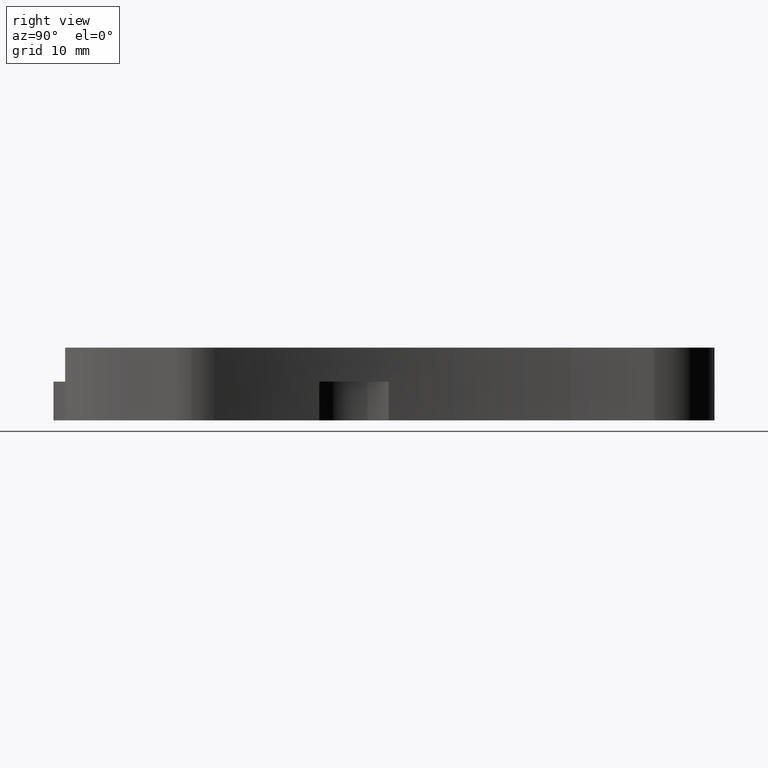
[diagram: clean part render]
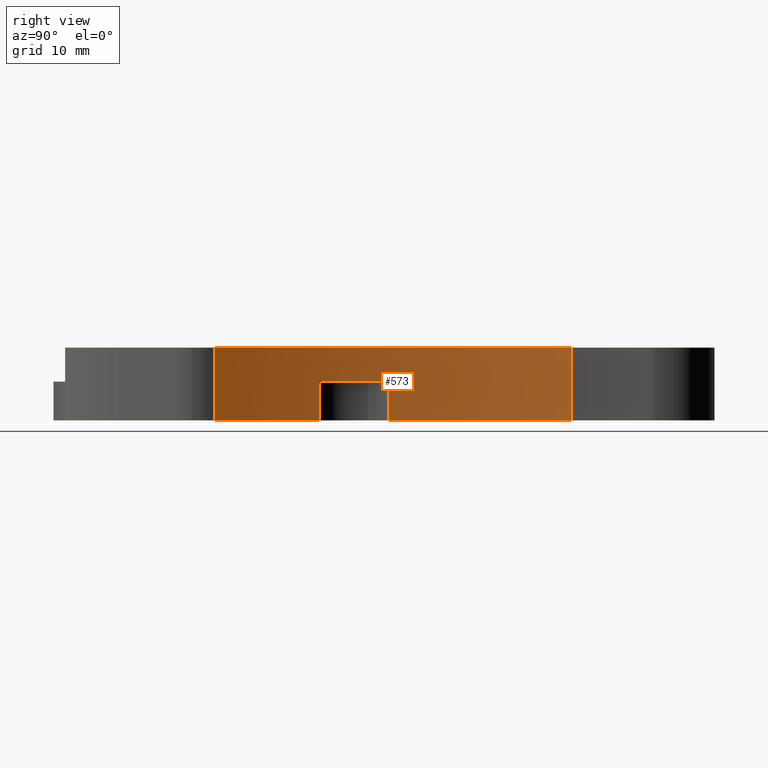
[diagram: same view with one face highlighted and labeled with its STEP entity id]
A machine part, right view. The second image highlights one B-rep face of the part: STEP entity #573.
In plain terms, the highlighted cylindrical surface (partial cylindrical patch) has radius 77.9706 mm, axis along (-0, 0, -1).
Its self-contained STEP definition (entity closure, byte-faithful):
#37 = AXIS2_PLACEMENT_3D ( 'NONE', #774, #474, #400 ) ;
#39 = EDGE_CURVE ( 'NONE', #522, #809, #219, .T. ) ;
#53 = VERTEX_POINT ( 'NONE', #1053 ) ;
#68 = VECTOR ( 'NONE', #479, 1000.000000000000000 ) ;
#87 = CARTESIAN_POINT ( 'NONE',  ( 8.113838518697791700, 23.58664256614016700, -2.000000000000001800 ) ) ;
#113 = DIRECTION ( 'NONE',  ( -2.627434620609032000E-046, 1.313717310304516000E-046, -1.000000000000000000 ) ) ;
#114 = VERTEX_POINT ( 'NONE', #797 ) ;
#118 = DIRECTION ( 'NONE',  ( -2.627434620609032000E-046, 1.313717310304516000E-046, -1.000000000000000000 ) ) ;
#122 = DIRECTION ( 'NONE',  ( -2.627434620609032000E-046, 1.313717310304516000E-046, -1.000000000000000000 ) ) ;
#140 = ORIENTED_EDGE ( 'NONE', *, *, #305, .F. ) ;
#182 = ORIENTED_EDGE ( 'NONE', *, *, #39, .T. ) ;
#219 = LINE ( 'NONE', #916, #68 ) ;
#223 = CARTESIAN_POINT ( 'NONE',  ( 10.26712372403496000, 16.41623369874271900, 0.0000000000000000000 ) ) ;
#232 = AXIS2_PLACEMENT_3D ( 'NONE', #665, #961, #511 ) ;
#268 = LINE ( 'NONE', #1004, #376 ) ;
#290 = EDGE_CURVE ( 'NONE', #941, #910, #268, .T. ) ;
#305 = EDGE_CURVE ( 'NONE', #114, #809, #561, .T. ) ;
#313 = EDGE_CURVE ( 'NONE', #589, #53, #384, .T. ) ;
#317 = CARTESIAN_POINT ( 'NONE',  ( 10.26712372403500200, 16.41623369874259500, -4.000000000000003600 ) ) ;
#374 = LINE ( 'NONE', #87, #868 ) ;
#376 = VECTOR ( 'NONE', #841, 1000.000000000000000 ) ;
#384 = LINE ( 'NONE', #749, #582 ) ;
#391 = CIRCLE ( 'NONE', #1056, 77.97056827778322900 ) ;
#393 = CARTESIAN_POINT ( 'NONE',  ( 8.113838518697791700, 23.58664256614016700, -4.000000000000003600 ) ) ;
#400 = DIRECTION ( 'NONE',  ( 1.000000000000000000, 0.0000000000000000000, 0.0000000000000000000 ) ) ;
#401 = EDGE_CURVE ( 'NONE', #910, #522, #527, .T. ) ;
#406 = ORIENTED_EDGE ( 'NONE', *, *, #473, .T. ) ;
#438 = CARTESIAN_POINT ( 'NONE',  ( 83.78042673124230100, 42.40091762083374500, -4.000000000000003600 ) ) ;
#453 = DIRECTION ( 'NONE',  ( 1.000000000000000000, 0.0000000000000000000, 0.0000000000000000000 ) ) ;
#473 = EDGE_CURVE ( 'NONE', #114, #1000, #374, .T. ) ;
#474 = DIRECTION ( 'NONE',  ( -2.627434620609032000E-046, 1.313717310304516000E-046, -1.000000000000000000 ) ) ;
#477 = CIRCLE ( 'NONE', #37, 77.97056827778322900 ) ;
#479 = DIRECTION ( 'NONE',  ( 2.627434620609032000E-046, -1.313717310304516000E-046, 1.000000000000000000 ) ) ;
#511 = DIRECTION ( 'NONE',  ( -1.000000000000000000, 0.0000000000000000000, -2.627434620609032000E-046 ) ) ;
#522 = VERTEX_POINT ( 'NONE', #317 ) ;
#523 = EDGE_CURVE ( 'NONE', #941, #589, #391, .T. ) ;
#527 = CIRCLE ( 'NONE', #1049, 77.97056827778322900 ) ;
#561 = CIRCLE ( 'NONE', #232, 77.97056827778322900 ) ;
#573 = ADVANCED_FACE ( 'NONE', ( #824 ), #1060, .F. ) ;
#575 = ORIENTED_EDGE ( 'NONE', *, *, #313, .F. ) ;
#582 = VECTOR ( 'NONE', #113, 1000.000000000000000 ) ;
#589 = VERTEX_POINT ( 'NONE', #857 ) ;
#591 = EDGE_CURVE ( 'NONE', #1000, #53, #477, .T. ) ;
#594 = AXIS2_PLACEMENT_3D ( 'NONE', #679, #122, #933 ) ;
#665 = CARTESIAN_POINT ( 'NONE',  ( 83.78042673124230100, 42.40091762083374500, 0.0000000000000000000 ) ) ;
#679 = CARTESIAN_POINT ( 'NONE',  ( 83.78042673124230100, 42.40091762083374500, 79.07476084379766200 ) ) ;
#686 = DIRECTION ( 'NONE',  ( -2.627434620609032000E-046, 1.313717310304516000E-046, -1.000000000000000000 ) ) ;
#703 = ORIENTED_EDGE ( 'NONE', *, *, #290, .T. ) ;
#707 = EDGE_LOOP ( 'NONE', ( #575, #849, #703, #998, #182, #140, #406, #879 ) ) ;
#743 = CARTESIAN_POINT ( 'NONE',  ( 83.78042673124230100, 42.40091762083374500, 3.500000000000003100 ) ) ;
#749 = CARTESIAN_POINT ( 'NONE',  ( 5.809858453459076700, 42.40091762083374500, 79.07476084379766200 ) ) ;
#774 = CARTESIAN_POINT ( 'NONE',  ( 83.78042673124230100, 42.40091762083374500, -4.000000000000003600 ) ) ;
#797 = CARTESIAN_POINT ( 'NONE',  ( 8.113838518697736600, 23.58664256614005700, 0.0000000000000000000 ) ) ;
#809 = VERTEX_POINT ( 'NONE', #223 ) ;
#824 = FACE_OUTER_BOUND ( 'NONE', #707, .T. ) ;
#841 = DIRECTION ( 'NONE',  ( -2.627434620609032000E-046, 1.313717310304516000E-046, -1.000000000000000000 ) ) ;
#849 = ORIENTED_EDGE ( 'NONE', *, *, #523, .F. ) ;
#856 = DIRECTION ( 'NONE',  ( -2.627434620609032000E-046, 1.313717310304516000E-046, -1.000000000000000000 ) ) ;
#857 = CARTESIAN_POINT ( 'NONE',  ( 5.809858453459076700, 42.40091762083374500, 3.500000000000003100 ) ) ;
#868 = VECTOR ( 'NONE', #118, 1000.000000000000000 ) ;
#879 = ORIENTED_EDGE ( 'NONE', *, *, #591, .T. ) ;
#906 = CARTESIAN_POINT ( 'NONE',  ( 15.04671082861630500, 5.589427352473864000, 3.500000000000003100 ) ) ;
#910 = VERTEX_POINT ( 'NONE', #997 ) ;
#916 = CARTESIAN_POINT ( 'NONE',  ( 10.26712372403504300, 16.41623369874264800, -2.000000000000001800 ) ) ;
#919 = DIRECTION ( 'NONE',  ( 1.000000000000000000, 0.0000000000000000000, 0.0000000000000000000 ) ) ;
#933 = DIRECTION ( 'NONE',  ( -1.000000000000000000, 0.0000000000000000000, 0.0000000000000000000 ) ) ;
#941 = VERTEX_POINT ( 'NONE', #906 ) ;
#961 = DIRECTION ( 'NONE',  ( 2.627434620609032000E-046, -1.313717310304516000E-046, 1.000000000000000000 ) ) ;
#997 = CARTESIAN_POINT ( 'NONE',  ( 15.04671082861630500, 5.589427352473864000, -4.000000000000003600 ) ) ;
#998 = ORIENTED_EDGE ( 'NONE', *, *, #401, .T. ) ;
#1000 = VERTEX_POINT ( 'NONE', #393 ) ;
#1004 = CARTESIAN_POINT ( 'NONE',  ( 15.04671082861630500, 5.589427352473864000, 79.07476084379766200 ) ) ;
#1049 = AXIS2_PLACEMENT_3D ( 'NONE', #438, #686, #919 ) ;
#1053 = CARTESIAN_POINT ( 'NONE',  ( 5.809858453459076700, 42.40091762083374500, -4.000000000000003600 ) ) ;
#1056 = AXIS2_PLACEMENT_3D ( 'NONE', #743, #856, #453 ) ;
#1060 = CYLINDRICAL_SURFACE ( 'NONE', #594, 77.97056827778322900 ) ;